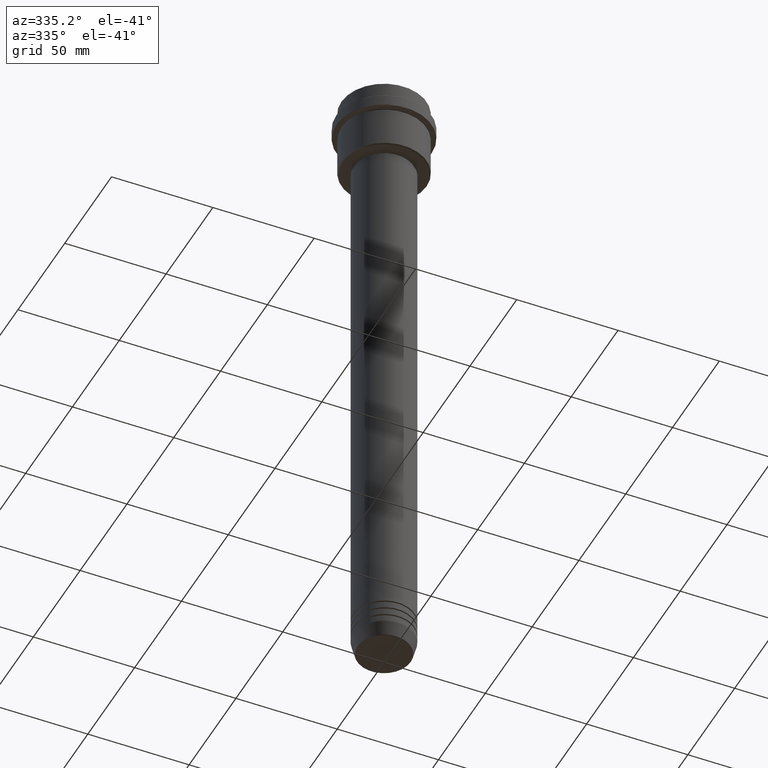
[diagram: clean part render]
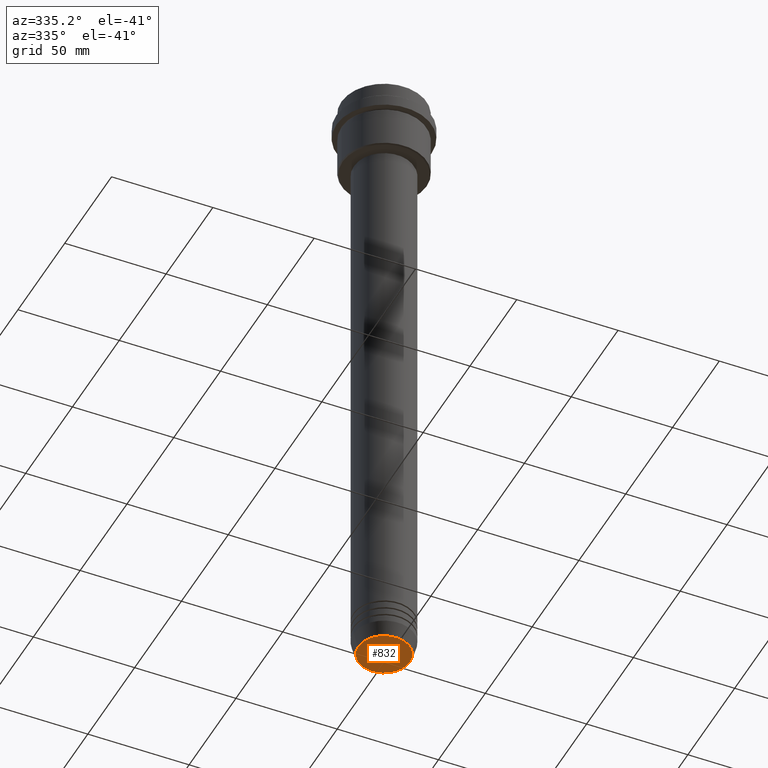
[diagram: same view with one face highlighted and labeled with its STEP entity id]
A machine part, auxiliary view. The second image highlights one B-rep face of the part: STEP entity #832.
In plain terms, the highlighted planar face has unit normal (0, -0, 1).
Its self-contained STEP definition (entity closure, byte-faithful):
#110 = AXIS2_PLACEMENT_3D ( 'NONE', #416, #994, #752 ) ;
#217 = DIRECTION ( 'NONE',  ( 1.000000000000000000, 0.000000000000000000, 0.000000000000000000 ) ) ;
#218 = CIRCLE ( 'NONE', #465, 12.74069215899265828 ) ;
#297 = CARTESIAN_POINT ( 'NONE',  ( 0.000000000000000000, 0.000000000000000000, -321.0000000000000000 ) ) ;
#351 = AXIS2_PLACEMENT_3D ( 'NONE', #1186, #441, #217 ) ;
#416 = CARTESIAN_POINT ( 'NONE',  ( 0.000000000000000000, 0.000000000000000000, -321.0000000000000000 ) ) ;
#441 = DIRECTION ( 'NONE',  ( 0.000000000000000000, 0.000000000000000000, -1.000000000000000000 ) ) ;
#465 = AXIS2_PLACEMENT_3D ( 'NONE', #297, #727, #1168 ) ;
#489 = VERTEX_POINT ( 'NONE', #1347 ) ;
#500 = VERTEX_POINT ( 'NONE', #802 ) ;
#558 = EDGE_CURVE ( 'NONE', #500, #489, #218, .T. ) ;
#583 = EDGE_LOOP ( 'NONE', ( #642, #1274 ) ) ;
#642 = ORIENTED_EDGE ( 'NONE', *, *, #558, .T. ) ;
#727 = DIRECTION ( 'NONE',  ( 0.000000000000000000, 0.000000000000000000, -1.000000000000000000 ) ) ;
#742 = FACE_OUTER_BOUND ( 'NONE', #583, .T. ) ;
#752 = DIRECTION ( 'NONE',  ( 1.000000000000000000, 0.000000000000000000, 0.000000000000000000 ) ) ;
#802 = CARTESIAN_POINT ( 'NONE',  ( 12.74069215899265828, 0.000000000000000000, -321.0000000000000000 ) ) ;
#832 = ADVANCED_FACE ( 'NONE', ( #742 ), #1413, .F. ) ;
#929 = EDGE_CURVE ( 'NONE', #489, #500, #1196, .T. ) ;
#994 = DIRECTION ( 'NONE',  ( 0.000000000000000000, -0.000000000000000000, 1.000000000000000000 ) ) ;
#1168 = DIRECTION ( 'NONE',  ( 1.000000000000000000, 0.000000000000000000, 0.000000000000000000 ) ) ;
#1186 = CARTESIAN_POINT ( 'NONE',  ( 0.000000000000000000, 0.000000000000000000, -321.0000000000000000 ) ) ;
#1196 = CIRCLE ( 'NONE', #351, 12.74069215899265828 ) ;
#1274 = ORIENTED_EDGE ( 'NONE', *, *, #929, .T. ) ;
#1347 = CARTESIAN_POINT ( 'NONE',  ( -12.74069215899265828, 1.589857736427680246E-15, -321.0000000000000000 ) ) ;
#1413 = PLANE ( 'NONE',  #110 ) ;